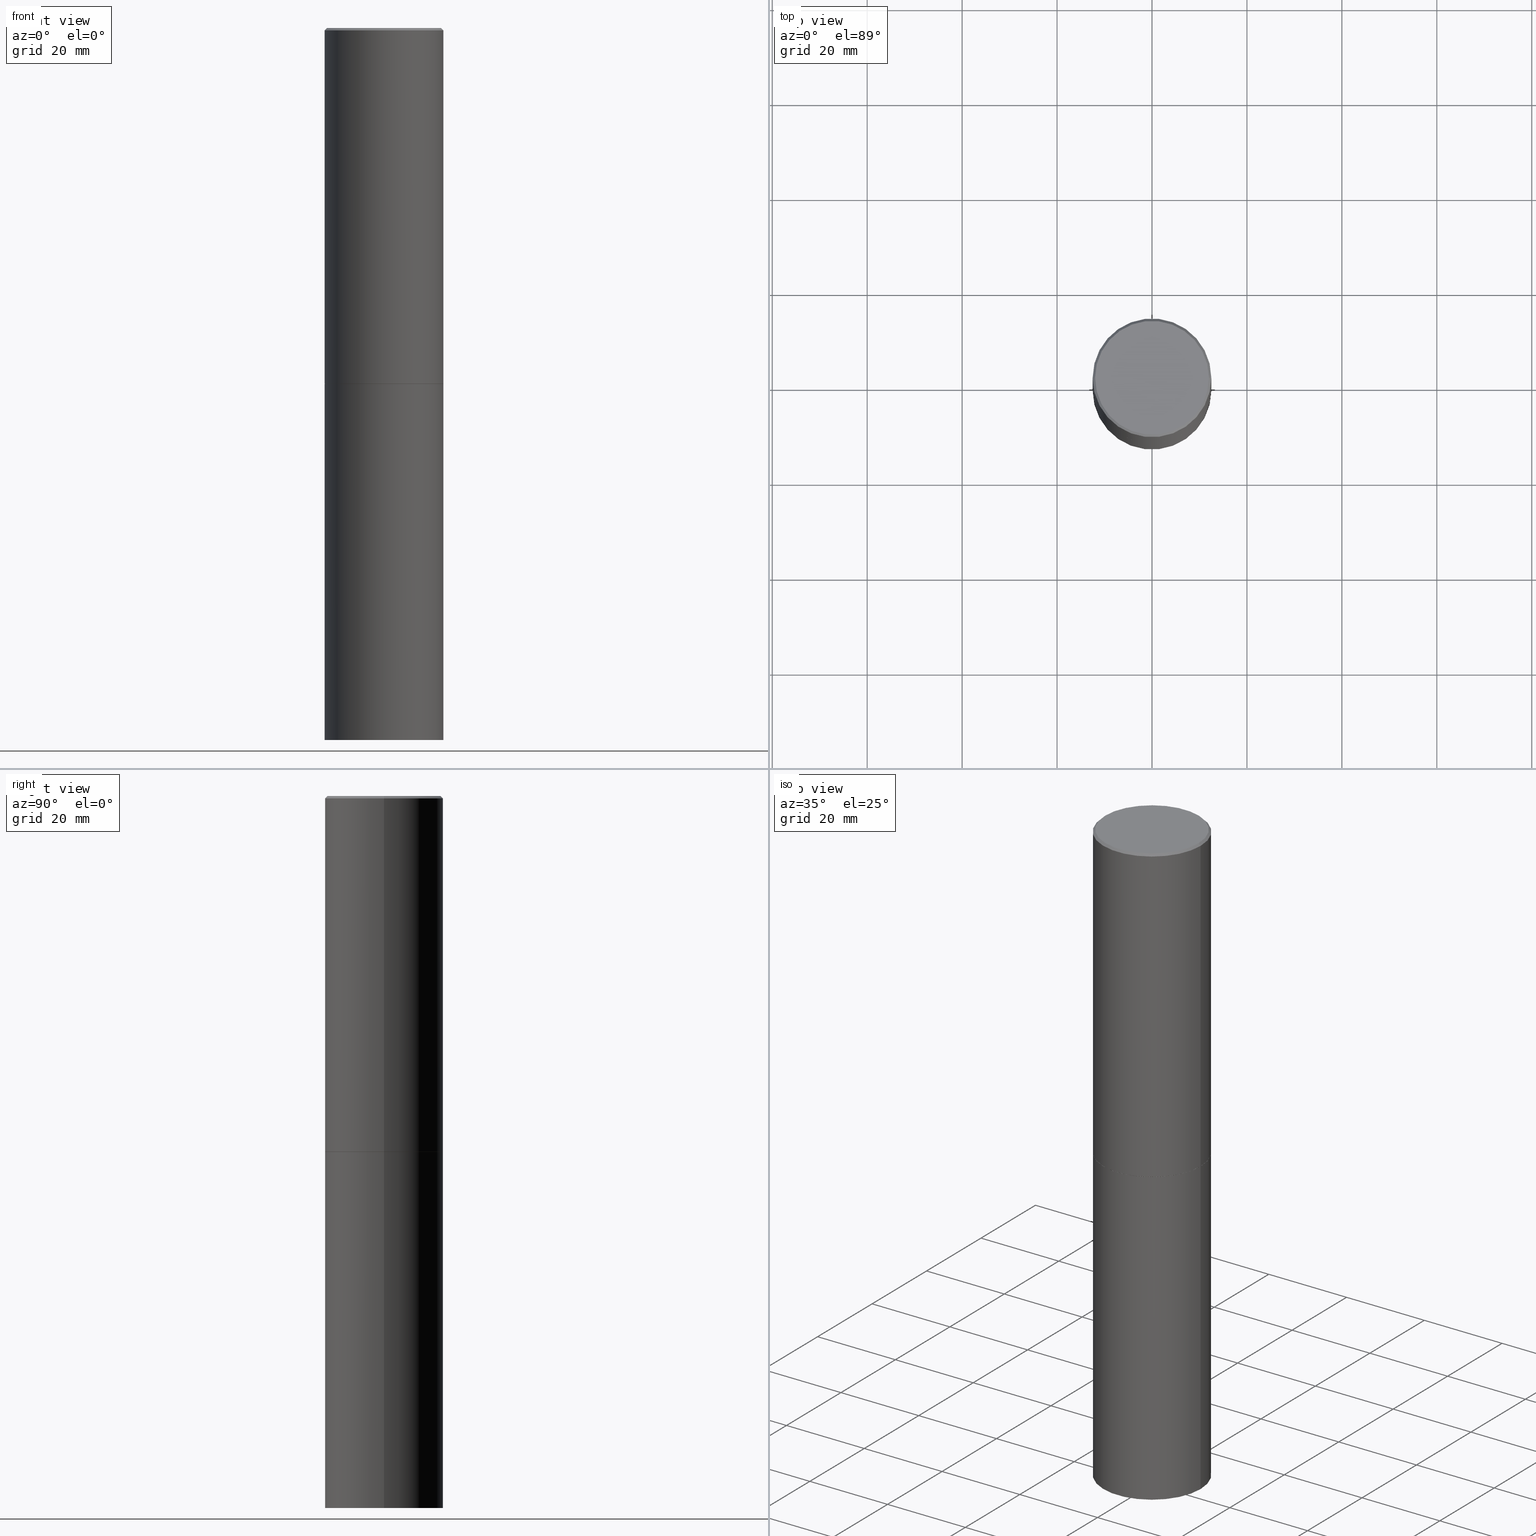
[diagram: canonical four-view strip — front | top / right | iso, engineering-drawing reading convention]
A machine part, canonical four-view strip (front | top / right | iso — engineering-drawing reading convention). The complete STEP part file that produces these views, byte-faithful:
ISO-10303-21;
HEADER;
FILE_DESCRIPTION (( 'STEP AP203' ),
    '1' );
FILE_NAME ('49426.STEP',
    '2024-02-28T20:23:40',
    ( '' ),
    ( '' ),
    'SwSTEP 2.0',
    'SolidWorks 2023',
    '' );
FILE_SCHEMA (( 'CONFIG_CONTROL_DESIGN' ));
ENDSEC;

DATA;
#1 = UNCERTAINTY_MEASURE_WITH_UNIT (LENGTH_MEASURE( 1.000000000000000082E-05 ), #324, 'distance_accuracy_value', 'NONE');
#2 = DATE_AND_TIME ( #251, #147 ) ;
#3 = EDGE_CURVE ( 'NONE', #206, #196, #62, .T. ) ;
#4 = CIRCLE ( 'NONE', #119, 0.4721499999999996255 ) ;
#5 = APPROVAL_PERSON_ORGANIZATION ( #129, #279, #336 ) ;
#6 = DIRECTION ( 'NONE',  ( -2.445468806185136597E-29, 3.491481338843145583E-15, 1.000000000000000000 ) ) ;
#7 = PRODUCT_DEFINITION_SHAPE ( 'NONE', 'NONE',  #193 ) ;
#8 = EDGE_LOOP ( 'NONE', ( #258, #67 ) ) ;
#9 = ADVANCED_FACE ( 'NONE', ( #85 ), #187, .T. ) ;
#10 = CARTESIAN_POINT ( 'NONE',  ( 4.890937612370299433E-31, -6.982962677686328587E-17, -0.02000000000000010797 ) ) ;
#11 = AXIS2_PLACEMENT_3D ( 'NONE', #327, #305, #74 ) ;
#12 = VERTEX_POINT ( 'NONE', #309 ) ;
#13 = CONICAL_SURFACE ( 'NONE', #188, 0.4921499999999996988, 0.7853981633974469467 ) ;
#14 = VERTEX_POINT ( 'NONE', #31 ) ;
#15 = CARTESIAN_POINT ( 'NONE',  ( 7.218290275216666916E-29, -1.030580546786331359E-14, -2.951700000000000212 ) ) ;
#16 = ORIENTED_EDGE ( 'NONE', *, *, #126, .T. ) ;
#17 = DIRECTION ( 'NONE',  ( 1.000000000000000000, -6.982962677686265922E-15, 0.000000000000000000 ) ) ;
#18 = CONICAL_SURFACE ( 'NONE', #227, 0.4911499999999999755, 0.7853981633972775267 ) ;
#19 = VERTEX_POINT ( 'NONE', #142 ) ;
#20 = DIRECTION ( 'NONE',  ( -2.445468806185136597E-29, 3.491481338843145583E-15, 1.000000000000000000 ) ) ;
#21 = APPLICATION_PROTOCOL_DEFINITION ( 'international standard', 'config_control_design', 1994, #99 ) ;
#22 = APPLICATION_PROTOCOL_DEFINITION ( 'international standard', 'config_control_design', 1994, #350 ) ;
#23 = AXIS2_PLACEMENT_3D ( 'NONE', #211, #73, #181 ) ;
#24 = DIRECTION ( 'NONE',  ( -2.445468806185136877E-29, 3.491481338843145188E-15, 1.000000000000000000 ) ) ;
#25 = PERSON_AND_ORGANIZATION ( #158, #283 ) ;
#26 = ADVANCED_FACE ( 'NONE', ( #166 ), #59, .F. ) ;
#27 = APPROVAL_STATUS ( 'not_yet_approved' ) ;
#28 = EDGE_CURVE ( 'NONE', #275, #14, #33, .T. ) ;
#29 = DIRECTION ( 'NONE',  ( -2.445468806185136597E-29, 3.491481338843145583E-15, 1.000000000000000000 ) ) ;
#30 = CALENDAR_DATE ( 2024, 28, 2 ) ;
#31 = CARTESIAN_POINT ( 'NONE',  ( -0.4921499999999996988, 3.366835455046430506E-15, -0.02000000000000010797 ) ) ;
#32 = DIRECTION ( 'NONE',  ( -1.000000000000000000, 6.982962677686265922E-15, -4.876176775795935793E-29 ) ) ;
#33 = CIRCLE ( 'NONE', #286, 0.4921499999999996988 ) ;
#34 = DIRECTION ( 'NONE',  ( 1.000000000000000000, -6.982962677686265922E-15, 4.876006802227162976E-29 ) ) ;
#35 = CONICAL_SURFACE ( 'NONE', #358, 0.4921499999999996988, 0.7853981633974469467 ) ;
#36 = DIRECTION ( 'NONE',  ( -2.445468806185136597E-29, 3.491481338843145583E-15, 1.000000000000000000 ) ) ;
#37 = CARTESIAN_POINT ( 'NONE',  ( 0.4721499999999996255, -3.342703923013973396E-15, 8.537024980224040028E-18 ) ) ;
#38 = EDGE_CURVE ( 'NONE', #310, #226, #78, .T. ) ;
#39 = ORIENTED_EDGE ( 'NONE', *, *, #28, .T. ) ;
#40 = DIRECTION ( 'NONE',  ( -2.445468806185136597E-29, 3.491481338843145583E-15, 1.000000000000000000 ) ) ;
#41 = EDGE_LOOP ( 'NONE', ( #96, #116 ) ) ;
#42 = ADVANCED_FACE ( 'NONE', ( #204 ), #322, .F. ) ;
#43 = ORIENTED_EDGE ( 'NONE', *, *, #52, .T. ) ;
#44 =( NAMED_UNIT ( * ) PLANE_ANGLE_UNIT ( ) SI_UNIT ( $, .RADIAN. ) );
#45 = EDGE_CURVE ( 'NONE', #14, #275, #170, .T. ) ;
#46 = CARTESIAN_POINT ( 'NONE',  ( 7.220735744022853640E-29, -1.030929694920215659E-14, -2.952700000000000546 ) ) ;
#47 = ORIENTED_EDGE ( 'NONE', *, *, #3, .T. ) ;
#48 = PERSON_AND_ORGANIZATION ( #158, #283 ) ;
#49 = ADVANCED_FACE ( 'NONE', ( #237 ), #18, .T. ) ;
#50 = DIRECTION ( 'NONE',  ( 1.000000000000000000, -6.982962677686265922E-15, 0.000000000000000000 ) ) ;
#51 = PERSON_AND_ORGANIZATION_ROLE ( 'creator' ) ;
#52 = EDGE_CURVE ( 'NONE', #146, #300, #101, .T. ) ;
#53 = CARTESIAN_POINT ( 'NONE',  ( -0.4721499999999996255, 3.331920641657999252E-15, 8.537024980177643606E-18 ) ) ;
#54 = DATE_AND_TIME ( #30, #213 ) ;
#55 = DATE_AND_TIME ( #113, #295 ) ;
#56 = ORIENTED_EDGE ( 'NONE', *, *, #91, .F. ) ;
#57 = APPROVAL_DATE_TIME ( #2, #344 ) ;
#58 = CARTESIAN_POINT ( 'NONE',  ( 0.4921499999999998098, -3.436665081823294593E-15, 2.399810400207968762E-29 ) ) ;
#59 = PLANE ( 'NONE',  #294 ) ;
#60 = ORIENTED_EDGE ( 'NONE', *, *, #299, .T. ) ;
#61 = LINE ( 'NONE', #118, #270 ) ;
#62 = CIRCLE ( 'NONE', #175, 0.4911499999999999755 ) ;
#63 = CARTESIAN_POINT ( 'NONE',  ( 0.4911499999999999755, -1.373897906834776478E-14, -2.952700000000000546 ) ) ;
#64 = CARTESIAN_POINT ( 'NONE',  ( 4.890937612370299433E-31, -6.982962677686328587E-17, -0.02000000000000010797 ) ) ;
#65 = AXIS2_PLACEMENT_3D ( 'NONE', #46, #151, #353 ) ;
#66 = CYLINDRICAL_SURFACE ( 'NONE', #23, 0.4921499999999999764 ) ;
#67 = ORIENTED_EDGE ( 'NONE', *, *, #144, .F. ) ;
#68 = CARTESIAN_POINT ( 'NONE',  ( 4.890937612370299433E-31, -6.982962677686328587E-17, -0.02000000000000010797 ) ) ;
#69 = LINE ( 'NONE', #102, #259 ) ;
#70 = AXIS2_PLACEMENT_3D ( 'NONE', #319, #40, #197 ) ;
#71 = LINE ( 'NONE', #183, #114 ) ;
#72 = FACE_OUTER_BOUND ( 'NONE', #167, .T. ) ;
#73 = DIRECTION ( 'NONE',  ( -2.445468806185136597E-29, 3.491481338843145583E-15, 1.000000000000000000 ) ) ;
#74 = DIRECTION ( 'NONE',  ( 1.000000000000000000, -6.982962677686265922E-15, 0.000000000000000000 ) ) ;
#75 = PERSON_AND_ORGANIZATION_ROLE ( 'design_supplier' ) ;
#76 = PLANE ( 'NONE',  #218 ) ;
#77 = COORDINATED_UNIVERSAL_TIME_OFFSET ( 5, 0, .BEHIND. ) ;
#78 = CIRCLE ( 'NONE', #334, 0.4921499999999999764 ) ;
#79 = CARTESIAN_POINT ( 'NONE',  ( -2.087702828670439639E-46, 2.980686340760894400E-32, 8.537024980200822558E-18 ) ) ;
#80 = ORIENTED_EDGE ( 'NONE', *, *, #52, .F. ) ;
#81 = ORIENTED_EDGE ( 'NONE', *, *, #361, .F. ) ;
#82 = CARTESIAN_POINT ( 'NONE',  ( 7.220735744022852519E-29, -1.030929694920215502E-14, -2.952700000000000102 ) ) ;
#83 = DIRECTION ( 'NONE',  ( -2.445468806185136877E-29, 3.491481338843145188E-15, 1.000000000000000000 ) ) ;
#84 = DIRECTION ( 'NONE',  ( 1.000000000000000000, -6.982962677686265922E-15, 0.000000000000000000 ) ) ;
#85 = FACE_OUTER_BOUND ( 'NONE', #271, .T. ) ;
#86 = DIRECTION ( 'NONE',  ( 1.000000000000000000, -6.982962677686265922E-15, 0.000000000000000000 ) ) ;
#87 = ORIENTED_EDGE ( 'NONE', *, *, #91, .T. ) ;
#88 = AXIS2_PLACEMENT_3D ( 'NONE', #314, #29, #253 ) ;
#89 = LOCAL_TIME ( 15, 23, 40.00000000000000000, #281 ) ;
#90 = DIRECTION ( 'NONE',  ( -2.445468806185136597E-29, 3.491481338843145583E-15, 1.000000000000000000 ) ) ;
#91 = EDGE_CURVE ( 'NONE', #300, #14, #201, .T. ) ;
#92 = DIRECTION ( 'NONE',  ( 1.000000000000000000, -6.982962677686265922E-15, 4.876176775795935793E-29 ) ) ;
#93 = EDGE_LOOP ( 'NONE', ( #148, #267 ) ) ;
#94 = CARTESIAN_POINT ( 'NONE',  ( 0.000000000000000000, 0.000000000000000000, 0.000000000000000000 ) ) ;
#95 = ADVANCED_BREP_SHAPE_REPRESENTATION ( '49426', ( #246, #240, #329 ), #150 ) ;
#96 = ORIENTED_EDGE ( 'NONE', *, *, #3, .F. ) ;
#97 = DIRECTION ( 'NONE',  ( -2.445468806185136597E-29, 3.491481338843145583E-15, 1.000000000000000000 ) ) ;
#98 = ORIENTED_EDGE ( 'NONE', *, *, #232, .F. ) ;
#99 = APPLICATION_CONTEXT ( 'configuration controlled 3d designs of mechanical parts and assemblies' ) ;
#100 = DIRECTION ( 'NONE',  ( 1.000000000000000000, -6.982962677686264344E-15, 0.000000000000000000 ) ) ;
#101 = CIRCLE ( 'NONE', #277, 0.4921499999999999764 ) ;
#102 = CARTESIAN_POINT ( 'NONE',  ( 0.4921499999999996988, -3.446223716380120377E-15, -0.02000000000000010797 ) ) ;
#103 = AXIS2_PLACEMENT_3D ( 'NONE', #15, #172, #84 ) ;
#104 = LINE ( 'NONE', #239, #222 ) ;
#105 = DIRECTION ( 'NONE',  ( -2.445468806185136597E-29, 3.491481338843145583E-15, 1.000000000000000000 ) ) ;
#106 = DIRECTION ( 'NONE',  ( 1.000000000000000000, -6.982962677686265922E-15, 4.876006802227162976E-29 ) ) ;
#107 = EDGE_LOOP ( 'NONE', ( #47, #130, #80, #241 ) ) ;
#108 = APPROVAL ( #27, 'UNSPECIFIED' ) ;
#109 = FACE_OUTER_BOUND ( 'NONE', #8, .T. ) ;
#110 = CALENDAR_DATE ( 2024, 28, 2 ) ;
#111 = DIRECTION ( 'NONE',  ( -2.445468806185136877E-29, 3.491481338843145188E-15, 1.000000000000000000 ) ) ;
#112 = ORIENTED_EDGE ( 'NONE', *, *, #28, .F. ) ;
#113 = CALENDAR_DATE ( 2024, 28, 2 ) ;
#114 = VECTOR ( 'NONE', #83, 39.37007874015748143 ) ;
#115 = SECURITY_CLASSIFICATION ( '', '', #366 ) ;
#116 = ORIENTED_EDGE ( 'NONE', *, *, #299, .F. ) ;
#117 = ADVANCED_FACE ( 'NONE', ( #133 ), #245, .T. ) ;
#118 = CARTESIAN_POINT ( 'NONE',  ( -0.4911499999999999755, -6.819466302516424705E-15, -2.952700000000000546 ) ) ;
#119 = AXIS2_PLACEMENT_3D ( 'NONE', #136, #138, #106 ) ;
#120 = DIRECTION ( 'NONE',  ( 2.445468806185136597E-29, -3.491481338843145583E-15, -1.000000000000000000 ) ) ;
#121 = APPROVAL_PERSON_ORGANIZATION ( #160, #344, #189 ) ;
#122 = ORIENTED_EDGE ( 'NONE', *, *, #205, .F. ) ;
#123 = DIRECTION ( 'NONE',  ( -2.445468806185136597E-29, 3.491481338843145583E-15, 1.000000000000000000 ) ) ;
#124 = EDGE_LOOP ( 'NONE', ( #16, #311 ) ) ;
#125 = DIRECTION ( 'NONE',  ( -1.000000000000000000, 6.982962677686265922E-15, 0.000000000000000000 ) ) ;
#126 = EDGE_CURVE ( 'NONE', #145, #269, #4, .T. ) ;
#127 = EDGE_LOOP ( 'NONE', ( #182, #177, #194, #337 ) ) ;
#128 =( NAMED_UNIT ( * ) SI_UNIT ( $, .STERADIAN. ) SOLID_ANGLE_UNIT ( ) );
#129 = PERSON_AND_ORGANIZATION ( #158, #283 ) ;
#130 = ORIENTED_EDGE ( 'NONE', *, *, #260, .T. ) ;
#131 = MECHANICAL_CONTEXT ( 'NONE', #350, 'mechanical' ) ;
#132 = AXIS2_PLACEMENT_3D ( 'NONE', #94, #97, #92 ) ;
#133 = FACE_OUTER_BOUND ( 'NONE', #264, .T. ) ;
#134 = SHAPE_DEFINITION_REPRESENTATION ( #7, #95 ) ;
#135 = DATE_AND_TIME ( #110, #89 ) ;
#136 = CARTESIAN_POINT ( 'NONE',  ( -2.087702828670439639E-46, 2.980686340760894400E-32, 8.537024980200822558E-18 ) ) ;
#137 = AXIS2_PLACEMENT_3D ( 'NONE', #82, #236, #50 ) ;
#138 = DIRECTION ( 'NONE',  ( -2.445468806185136597E-29, 3.491481338843145583E-15, 1.000000000000000000 ) ) ;
#139 = APPROVAL_STATUS ( 'not_yet_approved' ) ;
#140 = DIRECTION ( 'NONE',  ( -1.000000000000000000, 6.982962677686265922E-15, -4.876176775795935793E-29 ) ) ;
#141 = CC_DESIGN_APPROVAL ( #279, ( #193 ) ) ;
#142 = CARTESIAN_POINT ( 'NONE',  ( -0.4921499999999999764, -1.196718392382684217E-14, -2.952700000000000102 ) ) ;
#143 = CARTESIAN_POINT ( 'NONE',  ( 0.4921499999999996988, -3.446223716380120377E-15, -0.02000000000000010797 ) ) ;
#144 = EDGE_CURVE ( 'NONE', #226, #310, #348, .T. ) ;
#145 = VERTEX_POINT ( 'NONE', #53 ) ;
#146 = VERTEX_POINT ( 'NONE', #249 ) ;
#147 = LOCAL_TIME ( 15, 23, 40.00000000000000000, #77 ) ;
#148 = ORIENTED_EDGE ( 'NONE', *, *, #244, .T. ) ;
#149 = ORIENTED_EDGE ( 'NONE', *, *, #45, .T. ) ;
#150 =( GEOMETRIC_REPRESENTATION_CONTEXT ( 3 ) GLOBAL_UNCERTAINTY_ASSIGNED_CONTEXT ( ( #1 ) ) GLOBAL_UNIT_ASSIGNED_CONTEXT ( ( #324, #44, #128 ) ) REPRESENTATION_CONTEXT ( 'NONE', 'WORKASPACE' ) );
#151 = DIRECTION ( 'NONE',  ( -2.438088387897960049E-29, 3.491481338843145188E-15, 1.000000000000000000 ) ) ;
#152 = PERSON_AND_ORGANIZATION_ROLE ( 'design_owner' ) ;
#153 = DIRECTION ( 'NONE',  ( -2.445468806185136597E-29, 3.491481338843145583E-15, 1.000000000000000000 ) ) ;
#154 = CARTESIAN_POINT ( 'NONE',  ( 0.4911499999999999755, -1.373897906834776478E-14, -2.952700000000000546 ) ) ;
#155 = FACE_OUTER_BOUND ( 'NONE', #340, .T. ) ;
#156 = ADVANCED_FACE ( 'NONE', ( #109 ), #76, .T. ) ;
#157 = ORIENTED_EDGE ( 'NONE', *, *, #321, .F. ) ;
#158 = PERSON ( 'UNSPECIFIED', 'UNSPECIFIED', 'UNSPECIFIED', ('UNSPECIFIED'), ('UNSPECIFIED'), ('UNSPECIFIED') ) ;
#159 = CIRCLE ( 'NONE', #70, 0.4911499999999999755 ) ;
#160 = PERSON_AND_ORGANIZATION ( #158, #283 ) ;
#161 = DIRECTION ( 'NONE',  ( 1.000000000000000000, -6.982962677686265922E-15, 0.000000000000000000 ) ) ;
#162 = PERSON_AND_ORGANIZATION_ROLE ( 'creator' ) ;
#163 = DIRECTION ( 'NONE',  ( 1.000000000000000000, -6.982962677686265922E-15, 4.876176775795935793E-29 ) ) ;
#164 = CC_DESIGN_SECURITY_CLASSIFICATION ( #115, ( #220 ) ) ;
#165 = DIRECTION ( 'NONE',  ( -2.445468806185136597E-29, 3.491481338843145583E-15, 1.000000000000000000 ) ) ;
#166 = FACE_OUTER_BOUND ( 'NONE', #124, .T. ) ;
#167 = EDGE_LOOP ( 'NONE', ( #122, #202, #332, #238 ) ) ;
#168 = CC_DESIGN_PERSON_AND_ORGANIZATION_ASSIGNMENT ( #48, #152, ( #255 ) ) ;
#169 = CARTESIAN_POINT ( 'NONE',  ( 3.297005828269567997E-15, 0.4721499999999996255, -1.644234401644689488E-15 ) ) ;
#170 = CIRCLE ( 'NONE', #303, 0.4921499999999996988 ) ;
#171 = DIRECTION ( 'NONE',  ( 1.000000000000000000, -6.982962677686264344E-15, 0.000000000000000000 ) ) ;
#172 = DIRECTION ( 'NONE',  ( -2.445468806185136597E-29, 3.491481338843145583E-15, 1.000000000000000000 ) ) ;
#173 = CARTESIAN_POINT ( 'NONE',  ( -0.4921499999999999764, 3.496936074043332897E-15, -2.420853904668951509E-29 ) ) ;
#174 = EDGE_CURVE ( 'NONE', #19, #12, #208, .T. ) ;
#175 = AXIS2_PLACEMENT_3D ( 'NONE', #229, #36, #171 ) ;
#176 = CARTESIAN_POINT ( 'NONE',  ( 7.220735744022853640E-29, -1.030929694920215659E-14, -2.952700000000000546 ) ) ;
#177 = ORIENTED_EDGE ( 'NONE', *, *, #205, .T. ) ;
#178 = EDGE_CURVE ( 'NONE', #310, #12, #71, .T. ) ;
#179 = LINE ( 'NONE', #154, #228 ) ;
#180 = CIRCLE ( 'NONE', #137, 0.4921499999999999764 ) ;
#181 = DIRECTION ( 'NONE',  ( 1.000000000000000000, -6.982962677686265922E-15, 4.876176775795935793E-29 ) ) ;
#182 = ORIENTED_EDGE ( 'NONE', *, *, #38, .T. ) ;
#183 = CARTESIAN_POINT ( 'NONE',  ( 0.4921499999999999764, -3.436665081823295777E-15, 2.399810400207969603E-29 ) ) ;
#184 = CC_DESIGN_DATE_AND_TIME_ASSIGNMENT ( #54, #308, ( #193 ) ) ;
#185 = ORIENTED_EDGE ( 'NONE', *, *, #321, .T. ) ;
#186 = PERSON_AND_ORGANIZATION ( #158, #283 ) ;
#187 = CONICAL_SURFACE ( 'NONE', #88, 0.4911499999999999755, 0.7853981633972775267 ) ;
#188 = AXIS2_PLACEMENT_3D ( 'NONE', #10, #120, #225 ) ;
#189 = APPROVAL_ROLE ( '' ) ;
#190 = ADVANCED_FACE ( 'NONE', ( #256 ), #13, .T. ) ;
#191 = APPROVAL_DATE_TIME ( #55, #279 ) ;
#192 = VECTOR ( 'NONE', #24, 39.37007874015748143 ) ;
#193 = PRODUCT_DEFINITION ( 'UNKNOWN', '', #220, #257 ) ;
#194 = ORIENTED_EDGE ( 'NONE', *, *, #244, .F. ) ;
#195 = ORIENTED_EDGE ( 'NONE', *, *, #230, .T. ) ;
#196 = VERTEX_POINT ( 'NONE', #333 ) ;
#197 = DIRECTION ( 'NONE',  ( 1.000000000000000000, -6.982962677686264344E-15, 0.000000000000000000 ) ) ;
#198 = CLOSED_SHELL ( 'NONE', ( #347, #156, #289, #326 ) ) ;
#199 = CARTESIAN_POINT ( 'NONE',  ( 0.4921499999999999764, -2.405560812836148932E-14, -5.905499999999999972 ) ) ;
#200 = ORIENTED_EDGE ( 'NONE', *, *, #351, .T. ) ;
#201 = LINE ( 'NONE', #360, #192 ) ;
#202 = ORIENTED_EDGE ( 'NONE', *, *, #144, .T. ) ;
#203 = CC_DESIGN_APPROVAL ( #108, ( #220 ) ) ;
#204 = FACE_OUTER_BOUND ( 'NONE', #41, .T. ) ;
#205 = EDGE_CURVE ( 'NONE', #226, #19, #313, .T. ) ;
#206 = VERTEX_POINT ( 'NONE', #63 ) ;
#207 =( LENGTH_UNIT ( ) NAMED_UNIT ( * ) SI_UNIT ( $, .METRE. ) );
#208 = CIRCLE ( 'NONE', #307, 0.4921499999999999764 ) ;
#209 = APPROVAL_PERSON_ORGANIZATION ( #186, #108, #331 ) ;
#210 = DIRECTION ( 'NONE',  ( 0.7071067811865465735, -7.319954787623252890E-15, -0.7071067811865484609 ) ) ;
#211 = CARTESIAN_POINT ( 'NONE',  ( 0.000000000000000000, 0.000000000000000000, 0.000000000000000000 ) ) ;
#212 = AXIS2_PLACEMENT_3D ( 'NONE', #359, #105, #163 ) ;
#213 = LOCAL_TIME ( 15, 23, 40.00000000000000000, #254 ) ;
#214 = PRODUCT_RELATED_PRODUCT_CATEGORY ( 'detail', '', ( #255 ) ) ;
#215 = DIRECTION ( 'NONE',  ( 2.438088387897960049E-29, -3.491481338843145188E-15, -1.000000000000000000 ) ) ;
#216 = DIRECTION ( 'NONE',  ( -2.445468806185136597E-29, 3.491481338843145583E-15, 1.000000000000000000 ) ) ;
#217 = CC_DESIGN_PERSON_AND_ORGANIZATION_ASSIGNMENT ( #25, #328, ( #115 ) ) ;
#218 = AXIS2_PLACEMENT_3D ( 'NONE', #364, #215, #282 ) ;
#219 = PERSON_AND_ORGANIZATION ( #158, #283 ) ;
#220 = PRODUCT_DEFINITION_FORMATION_WITH_SPECIFIED_SOURCE ( 'ANY', '', #255, .NOT_KNOWN. ) ;
#221 = ORIENTED_EDGE ( 'NONE', *, *, #361, .T. ) ;
#222 = VECTOR ( 'NONE', #357, 39.37007874015748143 ) ;
#223 = DIRECTION ( 'NONE',  ( 1.000000000000000000, -6.982962677686265922E-15, 0.000000000000000000 ) ) ;
#224 = EDGE_LOOP ( 'NONE', ( #98, #221, #39, #157 ) ) ;
#225 = DIRECTION ( 'NONE',  ( -1.000000000000000000, 6.982962677686265922E-15, 0.000000000000000000 ) ) ;
#226 = VERTEX_POINT ( 'NONE', #290 ) ;
#227 = AXIS2_PLACEMENT_3D ( 'NONE', #176, #355, #100 ) ;
#228 = VECTOR ( 'NONE', #243, 39.37007874015748143 ) ;
#229 = CARTESIAN_POINT ( 'NONE',  ( 7.220735744022853640E-29, -1.030929694920215659E-14, -2.952700000000000546 ) ) ;
#230 = EDGE_CURVE ( 'NONE', #146, #275, #252, .T. ) ;
#231 = EDGE_LOOP ( 'NONE', ( #81, #343, #185, #149 ) ) ;
#232 = EDGE_CURVE ( 'NONE', #269, #145, #335, .T. ) ;
#233 = CYLINDRICAL_SURFACE ( 'NONE', #234, 0.4921499999999998098 ) ;
#234 = AXIS2_PLACEMENT_3D ( 'NONE', #297, #20, #272 ) ;
#235 = APPROVAL_STATUS ( 'not_yet_approved' ) ;
#236 = DIRECTION ( 'NONE',  ( -2.445468806185136597E-29, 3.491481338843145583E-15, 1.000000000000000000 ) ) ;
#237 = FACE_OUTER_BOUND ( 'NONE', #107, .T. ) ;
#238 = ORIENTED_EDGE ( 'NONE', *, *, #174, .F. ) ;
#239 = CARTESIAN_POINT ( 'NONE',  ( -0.4921499999999996988, 3.366835455046430506E-15, -0.02000000000000010797 ) ) ;
#240 = MANIFOLD_SOLID_BREP ( 'Body-Move/Copy2[2]', #342 ) ;
#241 = ORIENTED_EDGE ( 'NONE', *, *, #351, .F. ) ;
#242 = LOCAL_TIME ( 15, 23, 40.00000000000000000, #330 ) ;
#243 = DIRECTION ( 'NONE',  ( 0.7071067811864267805, -2.468850131080992517E-15, 0.7071067811866682540 ) ) ;
#244 = EDGE_CURVE ( 'NONE', #12, #19, #180, .T. ) ;
#245 = CYLINDRICAL_SURFACE ( 'NONE', #212, 0.4921499999999998098 ) ;
#246 = MANIFOLD_SOLID_BREP ( 'Body-Move/Copy2[1]', #198 ) ;
#247 = CC_DESIGN_DATE_AND_TIME_ASSIGNMENT ( #362, #248, ( #115 ) ) ;
#248 = DATE_TIME_ROLE ( 'classification_date' ) ;
#249 = CARTESIAN_POINT ( 'NONE',  ( 0.4921499999999999764, -1.374247054968660936E-14, -2.951700000000000212 ) ) ;
#250 = COORDINATED_UNIVERSAL_TIME_OFFSET ( 5, 0, .BEHIND. ) ;
#251 = CALENDAR_DATE ( 2024, 28, 2 ) ;
#252 = LINE ( 'NONE', #58, #315 ) ;
#253 = DIRECTION ( 'NONE',  ( 1.000000000000000000, -6.982962677686264344E-15, 0.000000000000000000 ) ) ;
#254 = COORDINATED_UNIVERSAL_TIME_OFFSET ( 5, 0, .BEHIND. ) ;
#255 = PRODUCT ( '49426', '49426', '', ( #131 ) ) ;
#256 = FACE_OUTER_BOUND ( 'NONE', #231, .T. ) ;
#257 = DESIGN_CONTEXT ( 'detailed design', #99, 'design' ) ;
#258 = ORIENTED_EDGE ( 'NONE', *, *, #38, .F. ) ;
#259 = VECTOR ( 'NONE', #210, 39.37007874015748143 ) ;
#260 = EDGE_CURVE ( 'NONE', #196, #300, #61, .T. ) ;
#261 = CARTESIAN_POINT ( 'NONE',  ( 4.890937612370299433E-31, -6.982962677686328587E-17, -0.02000000000000010797 ) ) ;
#262 = PLANE ( 'NONE',  #265 ) ;
#263 = CC_DESIGN_PERSON_AND_ORGANIZATION_ASSIGNMENT ( #301, #75, ( #220 ) ) ;
#264 = EDGE_LOOP ( 'NONE', ( #43, #87, #112, #291 ) ) ;
#265 = AXIS2_PLACEMENT_3D ( 'NONE', #341, #346, #32 ) ;
#266 = CARTESIAN_POINT ( 'NONE',  ( 7.218290275216666916E-29, -1.030580546786331359E-14, -2.951700000000000212 ) ) ;
#267 = ORIENTED_EDGE ( 'NONE', *, *, #174, .T. ) ;
#268 = DIRECTION ( 'NONE',  ( 0.000000000000000000, 0.000000000000000000, 1.000000000000000000 ) ) ;
#269 = VERTEX_POINT ( 'NONE', #37 ) ;
#270 = VECTOR ( 'NONE', #288, 39.37007874015748143 ) ;
#271 = EDGE_LOOP ( 'NONE', ( #356, #60, #200, #320 ) ) ;
#272 = DIRECTION ( 'NONE',  ( 1.000000000000000000, -6.982962677686265922E-15, 4.876176775795935793E-29 ) ) ;
#273 = ORIENTED_EDGE ( 'NONE', *, *, #45, .F. ) ;
#274 = DIRECTION ( 'NONE',  ( 1.000000000000000000, -6.982962677686265922E-15, 0.000000000000000000 ) ) ;
#275 = VERTEX_POINT ( 'NONE', #143 ) ;
#276 = LENGTH_MEASURE_WITH_UNIT ( LENGTH_MEASURE( 0.02539999999999999897 ), #207 );
#277 = AXIS2_PLACEMENT_3D ( 'NONE', #266, #123, #86 ) ;
#278 = APPROVAL_DATE_TIME ( #135, #108 ) ;
#279 = APPROVAL ( #235, 'UNSPECIFIED' ) ;
#280 = CALENDAR_DATE ( 2024, 28, 2 ) ;
#281 = COORDINATED_UNIVERSAL_TIME_OFFSET ( 5, 0, .BEHIND. ) ;
#282 = DIRECTION ( 'NONE',  ( -1.000000000000000000, 6.982962677686265922E-15, -4.876176775795935793E-29 ) ) ;
#283 = ORGANIZATION ( 'UNSPECIFIED', 'UNSPECIFIED', '' ) ;
#284 = DIRECTION ( 'NONE',  ( -2.445468806185136877E-29, 3.491481338843145188E-15, 1.000000000000000000 ) ) ;
#285 = DIRECTION ( 'NONE',  ( 2.438088387897960049E-29, -3.491481338843145188E-15, -1.000000000000000000 ) ) ;
#286 = AXIS2_PLACEMENT_3D ( 'NONE', #261, #6, #223 ) ;
#287 = CC_DESIGN_APPROVAL ( #344, ( #115 ) ) ;
#288 = DIRECTION ( 'NONE',  ( -0.7071067811864267805, 7.493145998869918709E-15, 0.7071067811866682540 ) ) ;
#289 = ADVANCED_FACE ( 'NONE', ( #293 ), #262, .F. ) ;
#290 = CARTESIAN_POINT ( 'NONE',  ( -0.4921499999999999764, -1.196718392382684217E-14, -5.905499999999999972 ) ) ;
#291 = ORIENTED_EDGE ( 'NONE', *, *, #230, .F. ) ;
#292 = ORIENTED_EDGE ( 'NONE', *, *, #302, .T. ) ;
#293 = FACE_OUTER_BOUND ( 'NONE', #93, .T. ) ;
#294 = AXIS2_PLACEMENT_3D ( 'NONE', #169, #285, #140 ) ;
#295 = LOCAL_TIME ( 15, 23, 40.00000000000000000, #250 ) ;
#296 = DIMENSIONAL_EXPONENTS ( 1.000000000000000000, 0.000000000000000000, 0.000000000000000000, 0.000000000000000000, 0.000000000000000000, 0.000000000000000000, 0.000000000000000000 ) ;
#297 = CARTESIAN_POINT ( 'NONE',  ( 0.000000000000000000, 0.000000000000000000, 0.000000000000000000 ) ) ;
#298 = DIRECTION ( 'NONE',  ( 1.000000000000000000, 0.000000000000000000, 0.000000000000000000 ) ) ;
#299 = EDGE_CURVE ( 'NONE', #196, #206, #159, .T. ) ;
#300 = VERTEX_POINT ( 'NONE', #316 ) ;
#301 = PERSON_AND_ORGANIZATION ( #158, #283 ) ;
#302 = EDGE_CURVE ( 'NONE', #300, #146, #304, .T. ) ;
#303 = AXIS2_PLACEMENT_3D ( 'NONE', #68, #153, #274 ) ;
#304 = CIRCLE ( 'NONE', #103, 0.4921499999999999764 ) ;
#305 = DIRECTION ( 'NONE',  ( -2.445468806185136597E-29, 3.491481338843145583E-15, 1.000000000000000000 ) ) ;
#306 = PERSON_AND_ORGANIZATION ( #158, #283 ) ;
#307 = AXIS2_PLACEMENT_3D ( 'NONE', #365, #216, #161 ) ;
#308 = DATE_TIME_ROLE ( 'creation_date' ) ;
#309 = CARTESIAN_POINT ( 'NONE',  ( 0.4921499999999999764, -1.374596203102545079E-14, -2.952700000000000102 ) ) ;
#310 = VERTEX_POINT ( 'NONE', #199 ) ;
#311 = ORIENTED_EDGE ( 'NONE', *, *, #232, .T. ) ;
#312 = ADVANCED_FACE ( 'NONE', ( #317 ), #35, .T. ) ;
#313 = LINE ( 'NONE', #173, #363 ) ;
#314 = CARTESIAN_POINT ( 'NONE',  ( 7.220735744022853640E-29, -1.030929694920215659E-14, -2.952700000000000546 ) ) ;
#315 = VECTOR ( 'NONE', #111, 39.37007874015748143 ) ;
#316 = CARTESIAN_POINT ( 'NONE',  ( -0.4921499999999999764, -1.690881473276754954E-15, -2.951700000000000212 ) ) ;
#317 = FACE_OUTER_BOUND ( 'NONE', #224, .T. ) ;
#318 = CC_DESIGN_PERSON_AND_ORGANIZATION_ASSIGNMENT ( #306, #51, ( #193 ) ) ;
#319 = CARTESIAN_POINT ( 'NONE',  ( 7.220735744022853640E-29, -1.030929694920215659E-14, -2.952700000000000546 ) ) ;
#320 = ORIENTED_EDGE ( 'NONE', *, *, #302, .F. ) ;
#321 = EDGE_CURVE ( 'NONE', #145, #14, #104, .T. ) ;
#322 = PLANE ( 'NONE',  #65 ) ;
#323 = CC_DESIGN_PERSON_AND_ORGANIZATION_ASSIGNMENT ( #219, #162, ( #220 ) ) ;
#324 =( CONVERSION_BASED_UNIT ( 'INCH', #276 ) LENGTH_UNIT ( ) NAMED_UNIT ( #296 ) );
#325 = AXIS2_PLACEMENT_3D ( 'NONE', #79, #165, #34 ) ;
#326 = ADVANCED_FACE ( 'NONE', ( #72 ), #66, .T. ) ;
#327 = CARTESIAN_POINT ( 'NONE',  ( 1.444171603492632270E-28, -2.061894304653819197E-14, -5.905499999999999972 ) ) ;
#328 = PERSON_AND_ORGANIZATION_ROLE ( 'classification_officer' ) ;
#329 = AXIS2_PLACEMENT_3D ( 'NONE', #352, #268, #298 ) ;
#330 = COORDINATED_UNIVERSAL_TIME_OFFSET ( 5, 0, .BEHIND. ) ;
#331 = APPROVAL_ROLE ( '' ) ;
#332 = ORIENTED_EDGE ( 'NONE', *, *, #178, .T. ) ;
#333 = CARTESIAN_POINT ( 'NONE',  ( -0.4911499999999999755, -6.814167848168202303E-15, -2.952700000000000546 ) ) ;
#334 = AXIS2_PLACEMENT_3D ( 'NONE', #339, #90, #17 ) ;
#335 = CIRCLE ( 'NONE', #325, 0.4721499999999996255 ) ;
#336 = APPROVAL_ROLE ( '' ) ;
#337 = ORIENTED_EDGE ( 'NONE', *, *, #178, .F. ) ;
#338 = ADVANCED_FACE ( 'NONE', ( #155 ), #233, .T. ) ;
#339 = CARTESIAN_POINT ( 'NONE',  ( 1.444171603492632270E-28, -2.061894304653819197E-14, -5.905499999999999972 ) ) ;
#340 = EDGE_LOOP ( 'NONE', ( #56, #292, #195, #273 ) ) ;
#341 = CARTESIAN_POINT ( 'NONE',  ( 3.436665081823367957E-15, 0.4921499999999896513, -2.952700000000001435 ) ) ;
#342 = CLOSED_SHELL ( 'NONE', ( #49, #117, #312, #190, #338, #9, #42, #26 ) ) ;
#343 = ORIENTED_EDGE ( 'NONE', *, *, #126, .F. ) ;
#344 = APPROVAL ( #139, 'UNSPECIFIED' ) ;
#345 = DIRECTION ( 'NONE',  ( 2.445468806185136597E-29, -3.491481338843145583E-15, -1.000000000000000000 ) ) ;
#346 = DIRECTION ( 'NONE',  ( 2.438088387897960049E-29, -3.491481338843145188E-15, -1.000000000000000000 ) ) ;
#347 = ADVANCED_FACE ( 'NONE', ( #354 ), #349, .T. ) ;
#348 = CIRCLE ( 'NONE', #11, 0.4921499999999999764 ) ;
#349 = CYLINDRICAL_SURFACE ( 'NONE', #132, 0.4921499999999999764 ) ;
#350 = APPLICATION_CONTEXT ( 'configuration controlled 3d designs of mechanical parts and assemblies' ) ;
#351 = EDGE_CURVE ( 'NONE', #206, #146, #179, .T. ) ;
#352 = CARTESIAN_POINT ( 'NONE',  ( 0.000000000000000000, 0.000000000000000000, 0.000000000000000000 ) ) ;
#353 = DIRECTION ( 'NONE',  ( 1.000000000000000000, -6.982962677686265922E-15, 4.876176775795935793E-29 ) ) ;
#354 = FACE_OUTER_BOUND ( 'NONE', #127, .T. ) ;
#355 = DIRECTION ( 'NONE',  ( -2.445468806185136597E-29, 3.491481338843145583E-15, 1.000000000000000000 ) ) ;
#356 = ORIENTED_EDGE ( 'NONE', *, *, #260, .F. ) ;
#357 = DIRECTION ( 'NONE',  ( -0.7071067811865465735, 2.468850131082246805E-15, -0.7071067811865484609 ) ) ;
#358 = AXIS2_PLACEMENT_3D ( 'NONE', #64, #345, #125 ) ;
#359 = CARTESIAN_POINT ( 'NONE',  ( 0.000000000000000000, 0.000000000000000000, 0.000000000000000000 ) ) ;
#360 = CARTESIAN_POINT ( 'NONE',  ( -0.4921499999999998098, 3.496936074043331714E-15, -2.420853904668950949E-29 ) ) ;
#361 = EDGE_CURVE ( 'NONE', #269, #275, #69, .T. ) ;
#362 = DATE_AND_TIME ( #280, #242 ) ;
#363 = VECTOR ( 'NONE', #284, 39.37007874015748143 ) ;
#364 = CARTESIAN_POINT ( 'NONE',  ( 3.436665081823440533E-15, 0.4921499999999793262, -5.905500000000001748 ) ) ;
#365 = CARTESIAN_POINT ( 'NONE',  ( 7.220735744022852519E-29, -1.030929694920215502E-14, -2.952700000000000102 ) ) ;
#366 = SECURITY_CLASSIFICATION_LEVEL ( 'unclassified' ) ;
ENDSEC;
END-ISO-10303-21;
